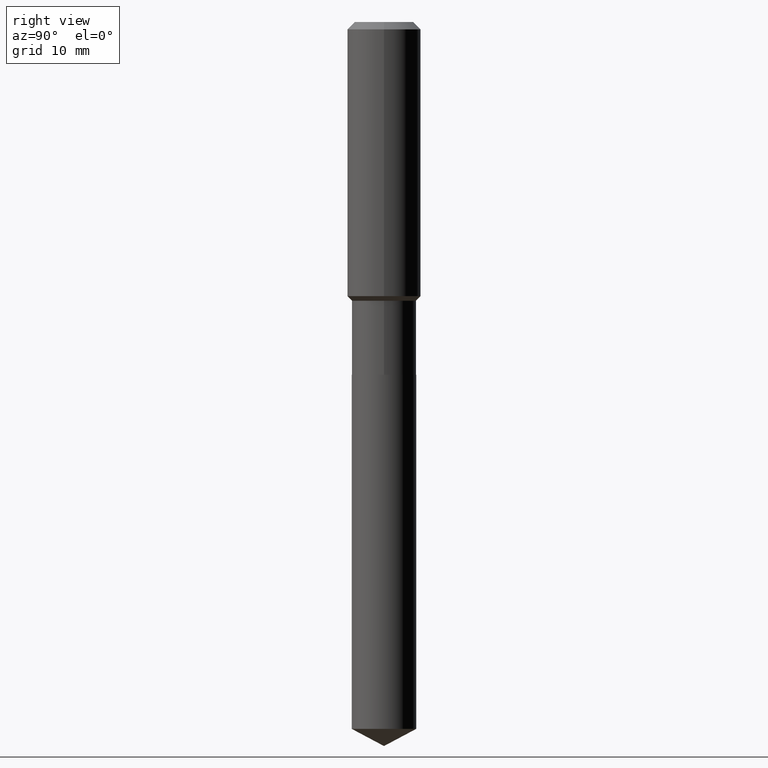
[diagram: clean part render]
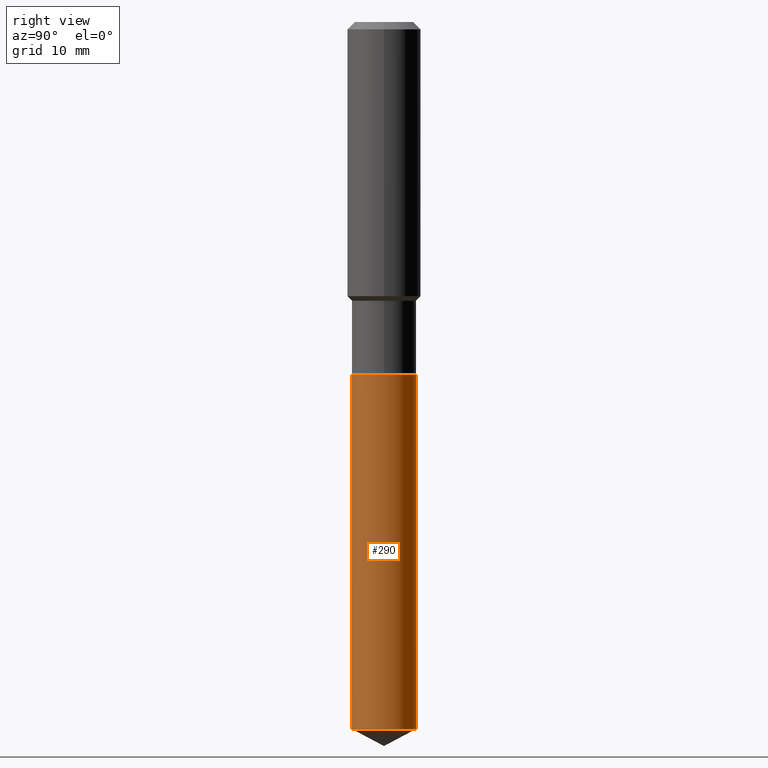
[diagram: same view with one face highlighted and labeled with its STEP entity id]
A machine part, right view. The second image highlights one B-rep face of the part: STEP entity #290.
In plain terms, the highlighted cylindrical surface (edge-blend (fillet) strip) has radius 5.2502 mm, axis along (-0, 0, 1).
Its self-contained STEP definition (entity closure, byte-faithful):
#21 = DIRECTION ( 'NONE',  ( -2.445464135208139913E-29, 3.491488027948060197E-15, 1.000000000000000000 ) ) ;
#46 = DIRECTION ( 'NONE',  ( -6.982962677686265133E-15, -1.000000000000000000, 2.643297526525653668E-15 ) ) ;
#63 = CARTESIAN_POINT ( 'NONE',  ( 5.536052283441911489E-29, -7.904015454873111947E-15, -2.263799999999999812 ) ) ;
#65 = EDGE_CURVE ( 'NONE', #197, #408, #304, .T. ) ;
#70 = CIRCLE ( 'NONE', #112, 0.2067000000000000226 ) ;
#97 = DIRECTION ( 'NONE',  ( -2.445464135208139913E-29, 3.491488027948060197E-15, 1.000000000000000000 ) ) ;
#98 = AXIS2_PLACEMENT_3D ( 'NONE', #390, #254, #206 ) ;
#112 = AXIS2_PLACEMENT_3D ( 'NONE', #434, #97, #46 ) ;
#124 = DIRECTION ( 'NONE',  ( -2.445464135208139913E-29, 3.491488027948059802E-15, 1.000000000000000000 ) ) ;
#133 = VECTOR ( 'NONE', #421, 39.37007874015748143 ) ;
#134 = CARTESIAN_POINT ( 'NONE',  ( -1.443378385477640183E-15, -0.2067000000000157878, -4.535795660475572255 ) ) ;
#139 = AXIS2_PLACEMENT_3D ( 'NONE', #63, #21, #488 ) ;
#179 = ORIENTED_EDGE ( 'NONE', *, *, #307, .T. ) ;
#182 = ORIENTED_EDGE ( 'NONE', *, *, #356, .F. ) ;
#197 = VERTEX_POINT ( 'NONE', #247 ) ;
#206 = DIRECTION ( 'NONE',  ( -6.982962677686265133E-15, -1.000000000000000000, 3.964946289788480107E-15 ) ) ;
#236 = CIRCLE ( 'NONE', #139, 0.2067000000000000226 ) ;
#242 = EDGE_LOOP ( 'NONE', ( #179, #331, #374, #182 ) ) ;
#247 = CARTESIAN_POINT ( 'NONE',  ( 1.468691834816237291E-15, 0.2066999999999841187, -4.535795660475574032 ) ) ;
#254 = DIRECTION ( 'NONE',  ( -2.445464135208139913E-29, 3.491488027948060197E-15, 1.000000000000000000 ) ) ;
#274 = CARTESIAN_POINT ( 'NONE',  ( 1.468691834816182268E-15, 0.2066999999999921123, -2.263800000000000701 ) ) ;
#290 = ADVANCED_FACE ( 'NONE', ( #469 ), #293, .T. ) ;
#293 = CYLINDRICAL_SURFACE ( 'NONE', #98, 0.2067000000000000226 ) ;
#301 = VERTEX_POINT ( 'NONE', #134 ) ;
#304 = LINE ( 'NONE', #274, #133 ) ;
#307 = EDGE_CURVE ( 'NONE', #301, #197, #70, .T. ) ;
#320 = LINE ( 'NONE', #467, #347 ) ;
#331 = ORIENTED_EDGE ( 'NONE', *, *, #65, .T. ) ;
#347 = VECTOR ( 'NONE', #124, 39.37007874015748143 ) ;
#356 = EDGE_CURVE ( 'NONE', #301, #474, #320, .T. ) ;
#374 = ORIENTED_EDGE ( 'NONE', *, *, #378, .F. ) ;
#378 = EDGE_CURVE ( 'NONE', #474, #408, #236, .T. ) ;
#390 = CARTESIAN_POINT ( 'NONE',  ( 5.536052283441911489E-29, -7.904015454873111947E-15, -2.263799999999999812 ) ) ;
#408 = VERTEX_POINT ( 'NONE', #417 ) ;
#417 = CARTESIAN_POINT ( 'NONE',  ( 1.468691834816238474E-15, 0.2066999999999921123, -2.263800000000000701 ) ) ;
#421 = DIRECTION ( 'NONE',  ( -2.445464135208139913E-29, 3.491488027948059802E-15, 1.000000000000000000 ) ) ;
#434 = CARTESIAN_POINT ( 'NONE',  ( 1.109213618648345564E-28, -1.583666110297352308E-14, -4.535795660475573143 ) ) ;
#467 = CARTESIAN_POINT ( 'NONE',  ( -1.443378385477695995E-15, -0.2067000000000079052, -2.263799999999998924 ) ) ;
#469 = FACE_OUTER_BOUND ( 'NONE', #242, .T. ) ;
#474 = VERTEX_POINT ( 'NONE', #485 ) ;
#485 = CARTESIAN_POINT ( 'NONE',  ( -1.443378385477695995E-15, -0.2067000000000079052, -2.263799999999998924 ) ) ;
#488 = DIRECTION ( 'NONE',  ( -6.982962677686265133E-15, -1.000000000000000000, 3.964946289788480107E-15 ) ) ;